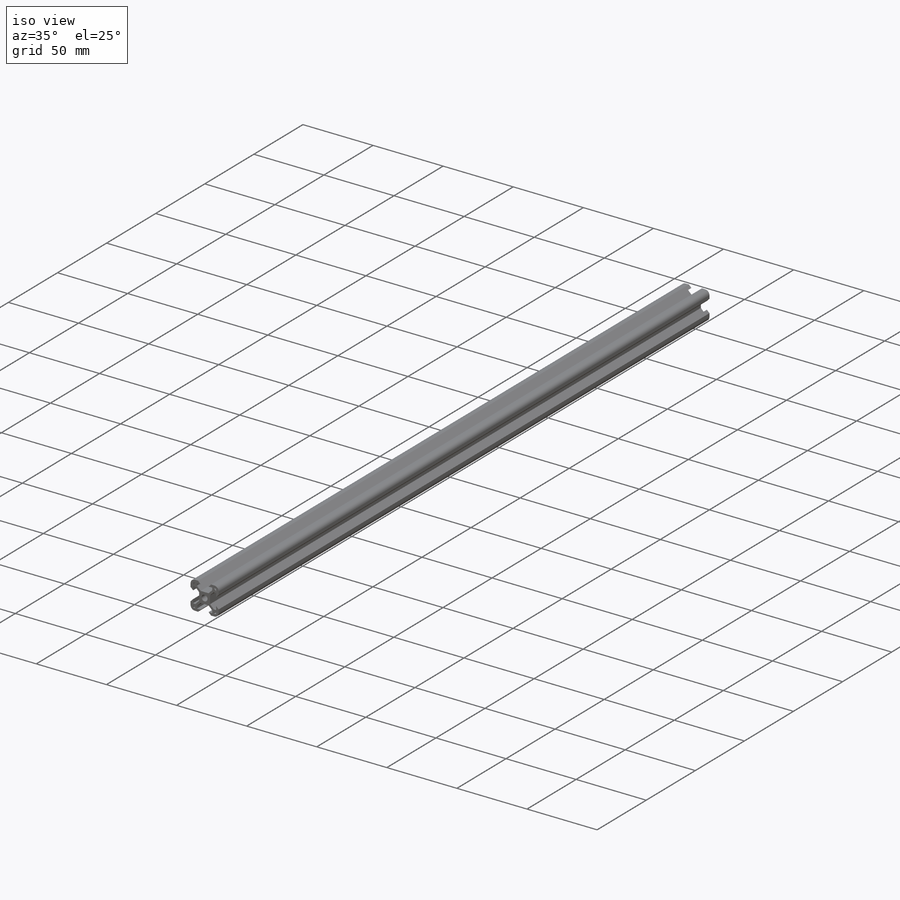
[diagram: iso view]
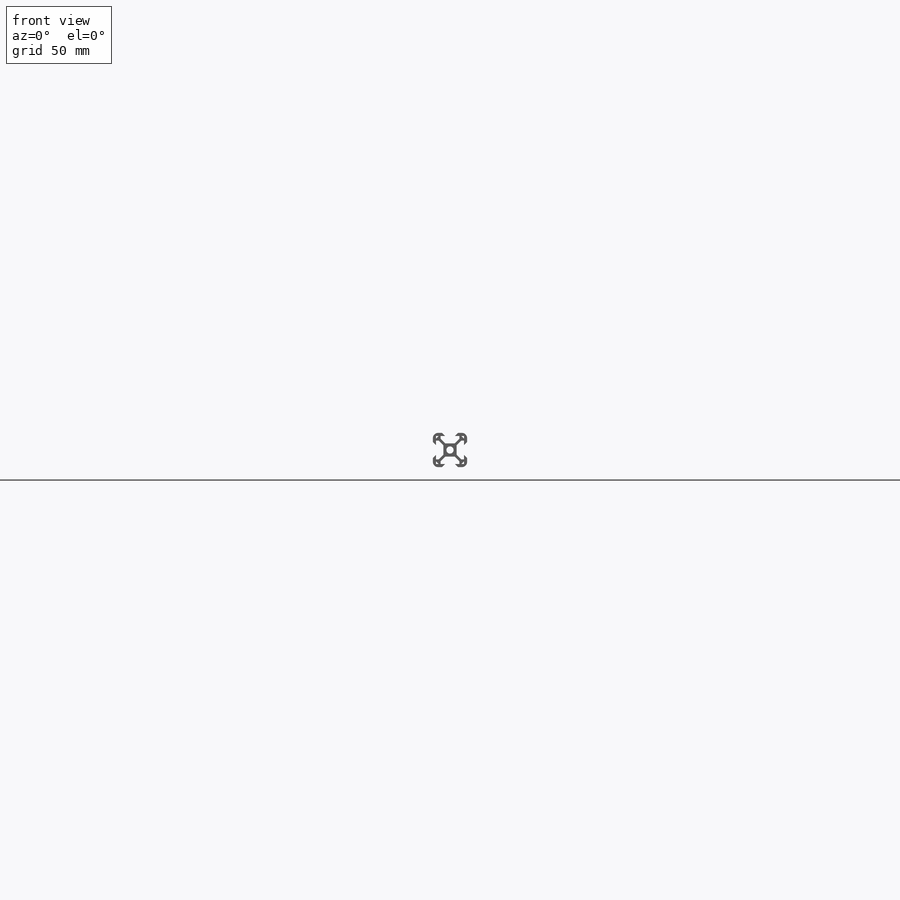
[diagram: front view]
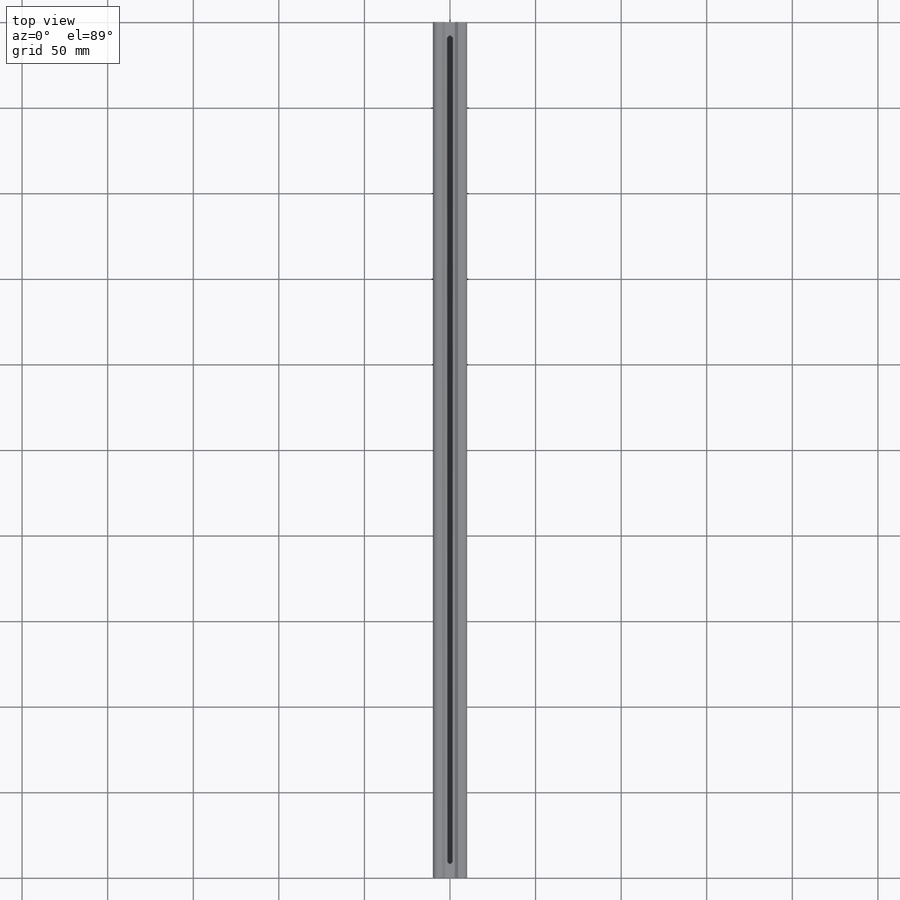
[diagram: top view]
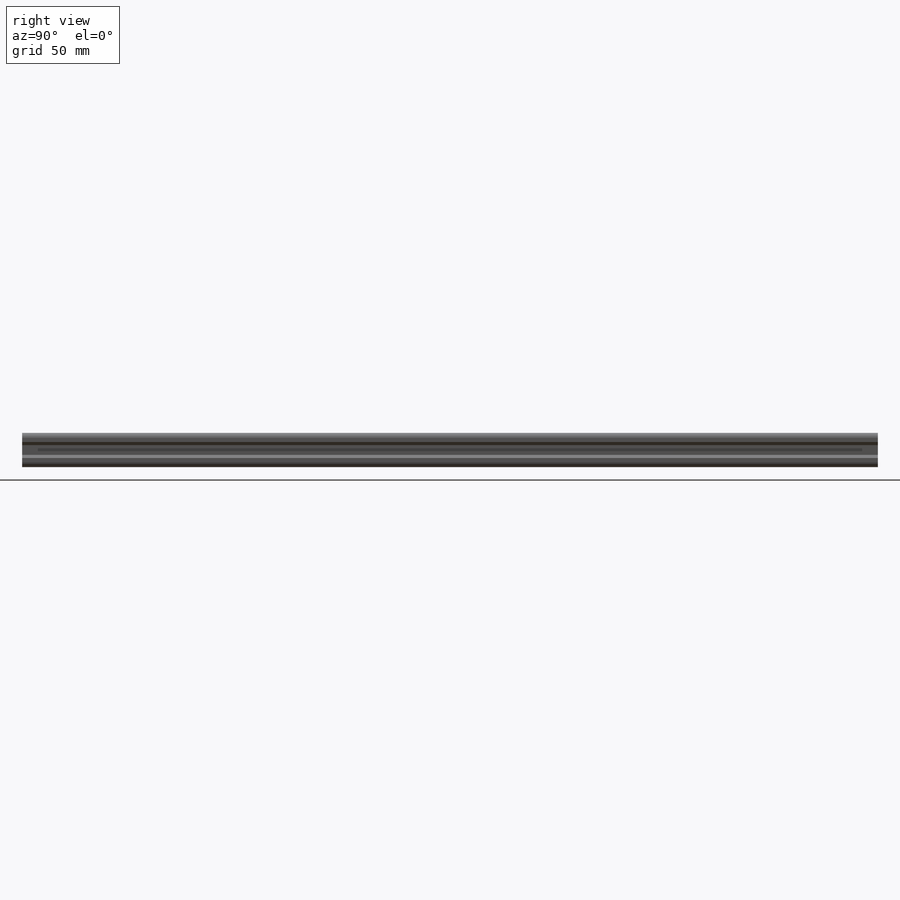
[diagram: right view]
SOLIDWORKS PART (.sldprt)
format: sldprt  version: not decoded by parser v0  size: 281,600 bytes
history: native  units: mm
features: sketch x4, cut_extrude x3, pattern_circular x2, material x1, extrude x1, fillet x1 (+13 scaffold rows collapsed)
feature tree (25):
  scaffold x13  (default folders/planes/origin — collapsed)
  material  "6063-T5"
  sketch  "Sketch1"  dims[c1.D1=20.0mm c1.D2=20.0mm c1.D3=~4.444444mm c2.D3=90.0deg c3.D3=~6.285394mm]
  extrude  "Boss-Extrude1"  Depth=500mm
  sketch  "Sketch2"  dims[c1.D1=~2.40542mm c2.D1=90.0deg c3.D1=1.64mm c3.D2=0.75mm c3.D3=0.75mm c3.D4=~2.105119mm c4.D4=90.0deg c5.D4=5.68mm c5.D5=1.8mm c5.D3=0.75mm]
  cut_extrude  "Cut-Extrude2"  [1 undecoded]
  pattern_circular  "CirPattern1"  Count=4 Angle=360deg
  sketch  "Sketch3"  dims[D1=4.2mm]
  cut_extrude  "Cut-Extrude3"  [1 undecoded]
  sketch  "Sketch4"  dims[D1=1.07mm D2=~1.634262mm]
  cut_extrude  "Cut-Extrude4"  [1 undecoded]
  pattern_circular  "CirPattern2"  Count=4 Angle=90deg
  fillet  "Fillet1"  Radius=3mm
decode coverage: 8 of 11 modeling features carry decoded parameters
note: ~ marks probable driven/reference dimensions
note: 3 parameter values undecoded
summary: no parameter record found for 3 features
note: suppression state not decoded; provenance and decode notes live in map.json
